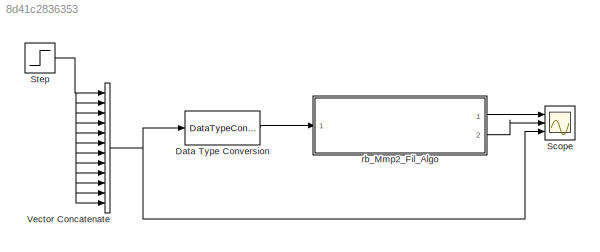
MODEL slx_8d41c2836353
KIND model
CONFIG AbsTol = auto
CONFIG EnableMultiTasking = off
CONFIG FixedStep = auto
CONFIG MaxStep = auto
CONFIG MinStep = auto
CONFIG RelTol = 1e-3
CONFIG SampleTimeConstraint = Unconstrained
CONFIG Solver = VariableStepAuto
CONFIG SolverName = VariableStepAuto
CONFIG StartTime = 0.0
CONFIG StopTime = 10.0
BLOCK [DataTypeConversion] Data Type Conversion
  OutDataTypeStr = single
  RndMeth = Floor
  SaturateOnIntegerOverflow = off
BLOCK [Scope] Scope
  NumInputPorts = 3
  Ports = [3]
  ScopeSpecificationString = Simulink.scopes.TimeScopeBlockCfg('CurrentConfiguration', extmgr.ConfigurationSet(extmgr.Configuration('Core','General UI',true),extmgr.Configuration('Core','Source UI',true),extmgr.Configuration('Sources','WiredSimulink',true),extmgr.Configuration('Visuals','Time Domain',true,'SerializedDisplays',{struct('MinYLimReal','-0.16552','MaxYLimReal','1.23184','YLabelReal','','MinYLimMag','0.00000','MaxY...<+1779ch>
BLOCK [Step] Step
  SampleTime = 0
BLOCK [Concatenate] Vector Concatenate
  NumInputs = 12
  Ports = [12, 1]
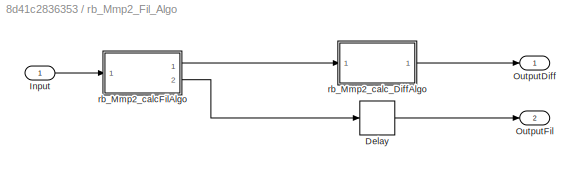
BLOCK [SubSystem] rb_Mmp2_Fil_Algo
  Ports = [1, 2]
  RequestExecContextInheritance = off
  Variant = off
BLOCK [Delay] rb_Mmp2_Fil_Algo/Delay
  DelayLength = 1
  InputPortMap = u0
  Ports = [1, 1]
BLOCK [Inport] rb_Mmp2_Fil_Algo/Input
  IconDisplay = Port number
BLOCK [Outport] rb_Mmp2_Fil_Algo/OutputDiff
  IconDisplay = Port number
BLOCK [Outport] rb_Mmp2_Fil_Algo/OutputFil
  IconDisplay = Port number
  Port = 2
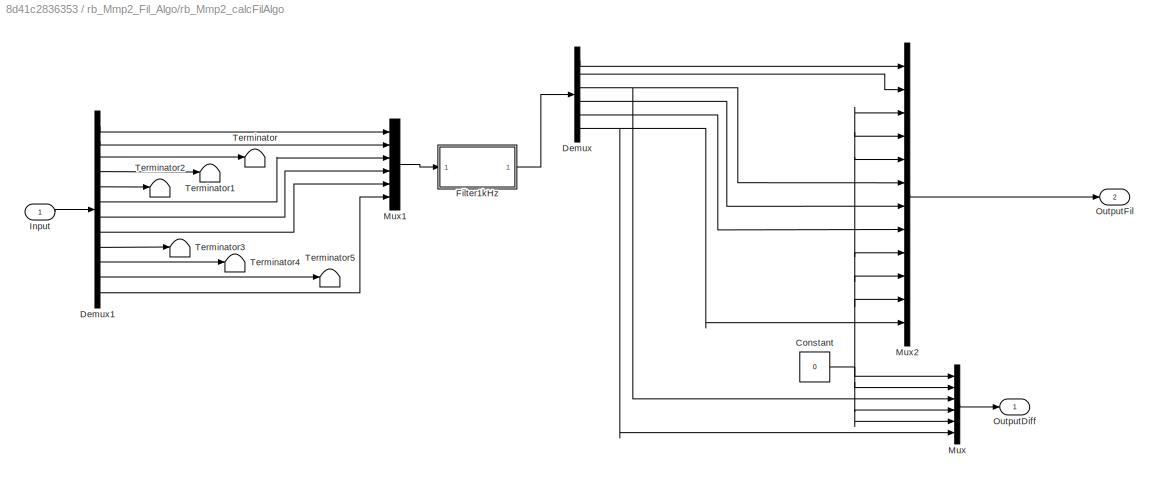
BLOCK [SubSystem] rb_Mmp2_Fil_Algo/rb_Mmp2_calcFilAlgo 
  Ports = [1, 2]
  RequestExecContextInheritance = off
  Tag = FilterWizardSubSystem
  UserDataPersistent = on
  Variant = off
BLOCK [Constant] rb_Mmp2_Fil_Algo/rb_Mmp2_calcFilAlgo /Constant
  OutDataTypeStr = single
  Value = 0
BLOCK [Demux] rb_Mmp2_Fil_Algo/rb_Mmp2_calcFilAlgo /Demux
  DisplayOption = bar
  Outputs = 6
  Ports = [1, 6]
BLOCK [Demux] rb_Mmp2_Fil_Algo/rb_Mmp2_calcFilAlgo /Demux1
  DisplayOption = bar
  Outputs = 12
  Ports = [1, 12]
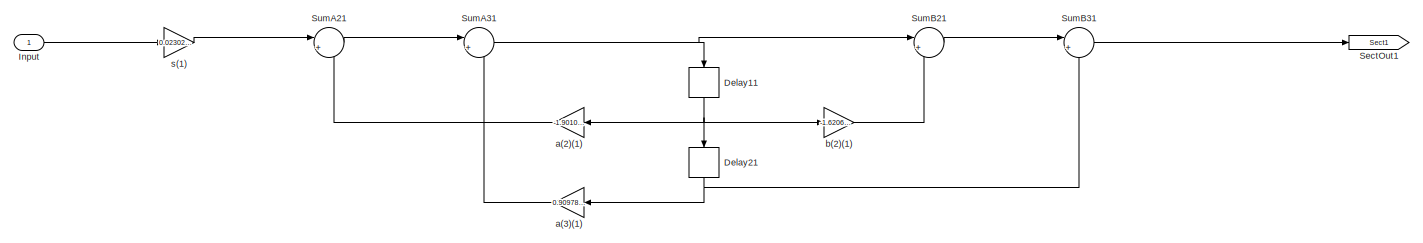
[diagram: rb_Mmp2_Fil_Algo/rb_Mmp2_calcFilAlgo /Filter1kHz - part 1/2, left side, full height]
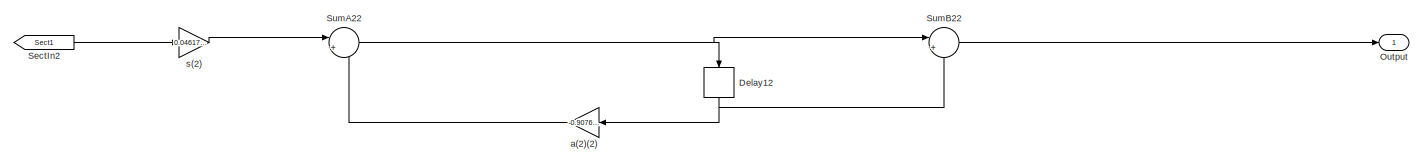
[diagram: rb_Mmp2_Fil_Algo/rb_Mmp2_calcFilAlgo /Filter1kHz - part 2/2, middle right region]
BLOCK [SubSystem] rb_Mmp2_Fil_Algo/rb_Mmp2_calcFilAlgo /Filter1kHz
  ErrorFcn = dspFilterRealizedInBasicElemsAlgLoopErrFcnCallback
  Ports = [1, 1]
  RequestExecContextInheritance = off
  Tag = FilterWizardSubSystem
  UserDataPersistent = on
  Variant = off
BLOCK [Delay] rb_Mmp2_Fil_Algo/rb_Mmp2_calcFilAlgo /Filter1kHz/Delay11
  DelayLength = 1
  InitialCondition = 0
  InputPortMap = u0
  Ports = [1, 1]
BLOCK [Delay] rb_Mmp2_Fil_Algo/rb_Mmp2_calcFilAlgo /Filter1kHz/Delay12
  DelayLength = 1
  InitialCondition = 0
  InputPortMap = u0
  Ports = [1, 1]
BLOCK [Delay] rb_Mmp2_Fil_Algo/rb_Mmp2_calcFilAlgo /Filter1kHz/Delay21
  DelayLength = 1
  InitialCondition = 0
  InputPortMap = u0
  Ports = [1, 1]
BLOCK [Inport] rb_Mmp2_Fil_Algo/rb_Mmp2_calcFilAlgo /Filter1kHz/Input
  IconDisplay = Port number
BLOCK [Outport] rb_Mmp2_Fil_Algo/rb_Mmp2_calcFilAlgo /Filter1kHz/Output
  IconDisplay = Port number
BLOCK [From] rb_Mmp2_Fil_Algo/rb_Mmp2_calcFilAlgo /Filter1kHz/SectIn2
  GotoTag = Sect1
BLOCK [Goto] rb_Mmp2_Fil_Algo/rb_Mmp2_calcFilAlgo /Filter1kHz/SectOut1
  GotoTag = Sect1
BLOCK [Sum] rb_Mmp2_Fil_Algo/rb_Mmp2_calcFilAlgo /Filter1kHz/SumA21
  IconShape = round
  InputSameDT = off
  Inputs = |+-
  Ports = [2, 1]
  RndMeth = Nearest
BLOCK [Sum] rb_Mmp2_Fil_Algo/rb_Mmp2_calcFilAlgo /Filter1kHz/SumA22
  IconShape = round
  InputSameDT = off
  Inputs = |+-
  Ports = [2, 1]
  RndMeth = Nearest
BLOCK [Sum] rb_Mmp2_Fil_Algo/rb_Mmp2_calcFilAlgo /Filter1kHz/SumA31
  IconShape = round
  InputSameDT = off
  Inputs = |+-
  Ports = [2, 1]
  RndMeth = Nearest
BLOCK [Sum] rb_Mmp2_Fil_Algo/rb_Mmp2_calcFilAlgo /Filter1kHz/SumB21
  IconShape = round
  InputSameDT = off
  Inputs = |++
  Ports = [2, 1]
  RndMeth = Nearest
BLOCK [Sum] rb_Mmp2_Fil_Algo/rb_Mmp2_calcFilAlgo /Filter1kHz/SumB22
  IconShape = round
  InputSameDT = off
  Inputs = |++
  Ports = [2, 1]
  RndMeth = Nearest
BLOCK [Sum] rb_Mmp2_Fil_Algo/rb_Mmp2_calcFilAlgo /Filter1kHz/SumB31
  IconShape = round
  InputSameDT = off
  Inputs = |++
  Ports = [2, 1]
  RndMeth = Nearest
BLOCK [Gain] rb_Mmp2_Fil_Algo/rb_Mmp2_calcFilAlgo /Filter1kHz/a(2)(1)
  Gain = -1.9010501272945237
  ParamDataTypeStr = double
  RndMeth = Nearest
BLOCK [Gain] rb_Mmp2_Fil_Algo/rb_Mmp2_calcFilAlgo /Filter1kHz/a(2)(2)
  Gain = -0.90765821754341902
  ParamDataTypeStr = double
  RndMeth = Nearest
BLOCK [Gain] rb_Mmp2_Fil_Algo/rb_Mmp2_calcFilAlgo /Filter1kHz/a(3)(1)
  Gain = 0.9097840805100903
  ParamDataTypeStr = double
  RndMeth = Nearest
BLOCK [Gain] rb_Mmp2_Fil_Algo/rb_Mmp2_calcFilAlgo /Filter1kHz/b(2)(1)
  Gain = -1.6206205101354008
  ParamDataTypeStr = double
  RndMeth = Nearest
BLOCK [Gain] rb_Mmp2_Fil_Algo/rb_Mmp2_calcFilAlgo /Filter1kHz/s(1)
  Gain = 0.023021680003533485
  ParamDataTypeStr = double
  RndMeth = Nearest
BLOCK [Gain] rb_Mmp2_Fil_Algo/rb_Mmp2_calcFilAlgo /Filter1kHz/s(2)
  Gain = 0.046170891228290531
  ParamDataTypeStr = double
  RndMeth = Nearest
BLOCK [Inport] rb_Mmp2_Fil_Algo/rb_Mmp2_calcFilAlgo /Input
  IconDisplay = Port number
BLOCK [Mux] rb_Mmp2_Fil_Algo/rb_Mmp2_calcFilAlgo /Mux
  DisplayOption = bar
  Inputs = 6
  Ports = [6, 1]
BLOCK [Mux] rb_Mmp2_Fil_Algo/rb_Mmp2_calcFilAlgo /Mux1
  DisplayOption = bar
  Inputs = 6
  Ports = [6, 1]
BLOCK [Mux] rb_Mmp2_Fil_Algo/rb_Mmp2_calcFilAlgo /Mux2
  DisplayOption = bar
  Inputs = 12
  Ports = [12, 1]
BLOCK [Outport] rb_Mmp2_Fil_Algo/rb_Mmp2_calcFilAlgo /OutputDiff
  IconDisplay = Port number
BLOCK [Outport] rb_Mmp2_Fil_Algo/rb_Mmp2_calcFilAlgo /OutputFil
  IconDisplay = Port number
  Port = 2
BLOCK [Terminator] rb_Mmp2_Fil_Algo/rb_Mmp2_calcFilAlgo /Terminator
BLOCK [Terminator] rb_Mmp2_Fil_Algo/rb_Mmp2_calcFilAlgo /Terminator1
BLOCK [Terminator] rb_Mmp2_Fil_Algo/rb_Mmp2_calcFilAlgo /Terminator2
BLOCK [Terminator] rb_Mmp2_Fil_Algo/rb_Mmp2_calcFilAlgo /Terminator3
BLOCK [Terminator] rb_Mmp2_Fil_Algo/rb_Mmp2_calcFilAlgo /Terminator4
BLOCK [Terminator] rb_Mmp2_Fil_Algo/rb_Mmp2_calcFilAlgo /Terminator5
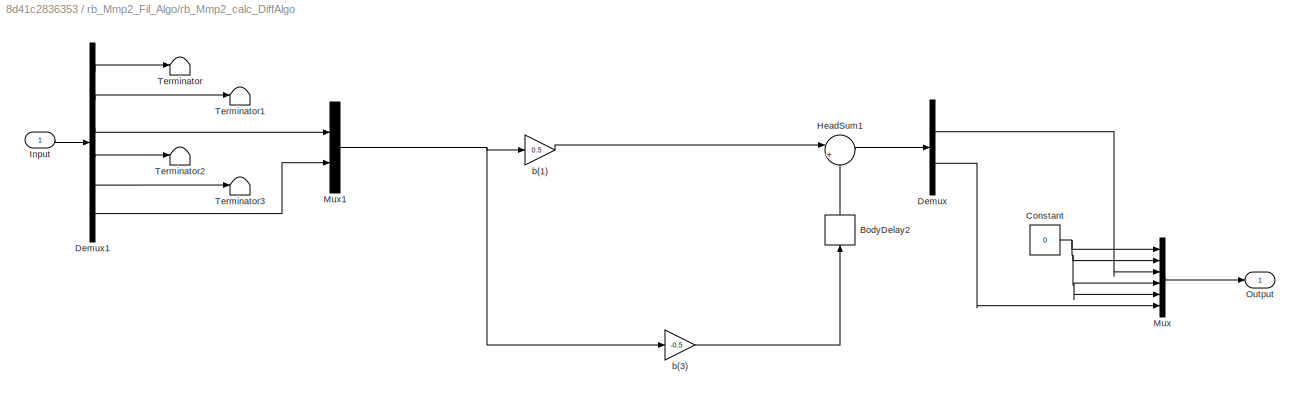
BLOCK [SubSystem] rb_Mmp2_Fil_Algo/rb_Mmp2_calc_DiffAlgo
  ErrorFcn = dspFilterRealizedInBasicElemsAlgLoopErrFcnCallback
  Ports = [1, 1]
  RequestExecContextInheritance = off
  Tag = FilterWizardSubSystem
  UserDataPersistent = on
  Variant = off
BLOCK [Delay] rb_Mmp2_Fil_Algo/rb_Mmp2_calc_DiffAlgo/BodyDelay2
  InitialCondition = 0
  InputPortMap = u0
  Ports = [1, 1]
BLOCK [Constant] rb_Mmp2_Fil_Algo/rb_Mmp2_calc_DiffAlgo/Constant
  OutDataTypeStr = single
  Value = 0
BLOCK [Demux] rb_Mmp2_Fil_Algo/rb_Mmp2_calc_DiffAlgo/Demux
  DisplayOption = bar
  Outputs = 2
  Ports = [1, 2]
BLOCK [Demux] rb_Mmp2_Fil_Algo/rb_Mmp2_calc_DiffAlgo/Demux1
  DisplayOption = bar
  Outputs = 6
  Ports = [1, 6]
BLOCK [Sum] rb_Mmp2_Fil_Algo/rb_Mmp2_calc_DiffAlgo/HeadSum1
  IconShape = round
  InputSameDT = off
  Inputs = |++
  Ports = [2, 1]
  RndMeth = Nearest
BLOCK [Inport] rb_Mmp2_Fil_Algo/rb_Mmp2_calc_DiffAlgo/Input
  IconDisplay = Port number
BLOCK [Mux] rb_Mmp2_Fil_Algo/rb_Mmp2_calc_DiffAlgo/Mux
  DisplayOption = bar
  Inputs = 6
  Ports = [6, 1]
BLOCK [Mux] rb_Mmp2_Fil_Algo/rb_Mmp2_calc_DiffAlgo/Mux1
  DisplayOption = bar
  Inputs = 2
  Ports = [2, 1]
BLOCK [Outport] rb_Mmp2_Fil_Algo/rb_Mmp2_calc_DiffAlgo/Output
  IconDisplay = Port number
BLOCK [Terminator] rb_Mmp2_Fil_Algo/rb_Mmp2_calc_DiffAlgo/Terminator
BLOCK [Terminator] rb_Mmp2_Fil_Algo/rb_Mmp2_calc_DiffAlgo/Terminator1
BLOCK [Terminator] rb_Mmp2_Fil_Algo/rb_Mmp2_calc_DiffAlgo/Terminator2
BLOCK [Terminator] rb_Mmp2_Fil_Algo/rb_Mmp2_calc_DiffAlgo/Terminator3
BLOCK [Gain] rb_Mmp2_Fil_Algo/rb_Mmp2_calc_DiffAlgo/b(1)
  Gain = 0.5
  ParamDataTypeStr = single
  RndMeth = Nearest
BLOCK [Gain] rb_Mmp2_Fil_Algo/rb_Mmp2_calc_DiffAlgo/b(3)
  Gain = -0.5
  ParamDataTypeStr = single
  RndMeth = Nearest
LINE Data Type Conversion:1 -> rb_Mmp2_Fil_Algo:1
NET Step:1 -> Vector Concatenate:1, Vector Concatenate:10, Vector Concatenate:11, Vector Concatenate:12, Vector Concatenate:2, Vector Concatenate:3, Vector Concatenate:4, Vector Concatenate:5, Vector Concatenate:6, Vector Concatenate:7, Vector Concatenate:8, Vector Concatenate:9
NET Vector Concatenate:1 -> Data Type Conversion:1, Scope:3
LINE rb_Mmp2_Fil_Algo/Delay:1 -> rb_Mmp2_Fil_Algo/OutputFil:1
LINE rb_Mmp2_Fil_Algo/Input:1 -> rb_Mmp2_Fil_Algo/rb_Mmp2_calcFilAlgo :1
NET rb_Mmp2_Fil_Algo/rb_Mmp2_calcFilAlgo /Constant:1 -> rb_Mmp2_Fil_Algo/rb_Mmp2_calcFilAlgo /Mux2:10, rb_Mmp2_Fil_Algo/rb_Mmp2_calcFilAlgo /Mux2:11, rb_Mmp2_Fil_Algo/rb_Mmp2_calcFilAlgo /Mux2:3, rb_Mmp2_Fil_Algo/rb_Mmp2_calcFilAlgo /Mux2:4, rb_Mmp2_Fil_Algo/rb_Mmp2_calcFilAlgo /Mux2:5, rb_Mmp2_Fil_Algo/rb_Mmp2_calcFilAlgo /Mux2:9, rb_Mmp2_Fil_Algo/rb_Mmp2_calcFilAlgo /Mux:1, rb_Mmp2_Fil_Algo/rb_Mmp2_calcFilAlgo /Mux:2, rb_Mmp2_Fil_Algo/rb_Mmp2_calcFilAlgo /Mux:4, rb_Mmp2_Fil_Algo/rb_Mmp2_calcFilAlgo /Mux:5
LINE rb_Mmp2_Fil_Algo/rb_Mmp2_calcFilAlgo /Demux1:1 -> rb_Mmp2_Fil_Algo/rb_Mmp2_calcFilAlgo /Mux1:1
LINE rb_Mmp2_Fil_Algo/rb_Mmp2_calcFilAlgo /Demux1:10 -> rb_Mmp2_Fil_Algo/rb_Mmp2_calcFilAlgo /Terminator4:1
LINE rb_Mmp2_Fil_Algo/rb_Mmp2_calcFilAlgo /Demux1:11 -> rb_Mmp2_Fil_Algo/rb_Mmp2_calcFilAlgo /Terminator5:1
LINE rb_Mmp2_Fil_Algo/rb_Mmp2_calcFilAlgo /Demux1:12 -> rb_Mmp2_Fil_Algo/rb_Mmp2_calcFilAlgo /Mux1:6
LINE rb_Mmp2_Fil_Algo/rb_Mmp2_calcFilAlgo /Demux1:2 -> rb_Mmp2_Fil_Algo/rb_Mmp2_calcFilAlgo /Mux1:2
LINE rb_Mmp2_Fil_Algo/rb_Mmp2_calcFilAlgo /Demux1:3 -> rb_Mmp2_Fil_Algo/rb_Mmp2_calcFilAlgo /Terminator:1
LINE rb_Mmp2_Fil_Algo/rb_Mmp2_calcFilAlgo /Demux1:4 -> rb_Mmp2_Fil_Algo/rb_Mmp2_calcFilAlgo /Terminator1:1
LINE rb_Mmp2_Fil_Algo/rb_Mmp2_calcFilAlgo /Demux1:5 -> rb_Mmp2_Fil_Algo/rb_Mmp2_calcFilAlgo /Terminator2:1
LINE rb_Mmp2_Fil_Algo/rb_Mmp2_calcFilAlgo /Demux1:6 -> rb_Mmp2_Fil_Algo/rb_Mmp2_calcFilAlgo /Mux1:3
LINE rb_Mmp2_Fil_Algo/rb_Mmp2_calcFilAlgo /Demux1:7 -> rb_Mmp2_Fil_Algo/rb_Mmp2_calcFilAlgo /Mux1:4
LINE rb_Mmp2_Fil_Algo/rb_Mmp2_calcFilAlgo /Demux1:8 -> rb_Mmp2_Fil_Algo/rb_Mmp2_calcFilAlgo /Mux1:5
LINE rb_Mmp2_Fil_Algo/rb_Mmp2_calcFilAlgo /Demux1:9 -> rb_Mmp2_Fil_Algo/rb_Mmp2_calcFilAlgo /Terminator3:1
LINE rb_Mmp2_Fil_Algo/rb_Mmp2_calcFilAlgo /Demux:1 -> rb_Mmp2_Fil_Algo/rb_Mmp2_calcFilAlgo /Mux2:1
LINE rb_Mmp2_Fil_Algo/rb_Mmp2_calcFilAlgo /Demux:2 -> rb_Mmp2_Fil_Algo/rb_Mmp2_calcFilAlgo /Mux2:2
NET rb_Mmp2_Fil_Algo/rb_Mmp2_calcFilAlgo /Demux:3 -> rb_Mmp2_Fil_Algo/rb_Mmp2_calcFilAlgo /Mux2:6, rb_Mmp2_Fil_Algo/rb_Mmp2_calcFilAlgo /Mux:3
LINE rb_Mmp2_Fil_Algo/rb_Mmp2_calcFilAlgo /Demux:4 -> rb_Mmp2_Fil_Algo/rb_Mmp2_calcFilAlgo /Mux2:7
LINE rb_Mmp2_Fil_Algo/rb_Mmp2_calcFilAlgo /Demux:5 -> rb_Mmp2_Fil_Algo/rb_Mmp2_calcFilAlgo /Mux2:8
NET rb_Mmp2_Fil_Algo/rb_Mmp2_calcFilAlgo /Demux:6 -> rb_Mmp2_Fil_Algo/rb_Mmp2_calcFilAlgo /Mux2:12, rb_Mmp2_Fil_Algo/rb_Mmp2_calcFilAlgo /Mux:6
NET rb_Mmp2_Fil_Algo/rb_Mmp2_calcFilAlgo /Filter1kHz/Delay11:1 -> rb_Mmp2_Fil_Algo/rb_Mmp2_calcFilAlgo /Filter1kHz/Delay21:1, rb_Mmp2_Fil_Algo/rb_Mmp2_calcFilAlgo /Filter1kHz/a(2)(1):1, rb_Mmp2_Fil_Algo/rb_Mmp2_calcFilAlgo /Filter1kHz/b(2)(1):1
NET rb_Mmp2_Fil_Algo/rb_Mmp2_calcFilAlgo /Filter1kHz/Delay12:1 -> rb_Mmp2_Fil_Algo/rb_Mmp2_calcFilAlgo /Filter1kHz/SumB22:2, rb_Mmp2_Fil_Algo/rb_Mmp2_calcFilAlgo /Filter1kHz/a(2)(2):1
NET rb_Mmp2_Fil_Algo/rb_Mmp2_calcFilAlgo /Filter1kHz/Delay21:1 -> rb_Mmp2_Fil_Algo/rb_Mmp2_calcFilAlgo /Filter1kHz/SumB31:2, rb_Mmp2_Fil_Algo/rb_Mmp2_calcFilAlgo /Filter1kHz/a(3)(1):1
LINE rb_Mmp2_Fil_Algo/rb_Mmp2_calcFilAlgo /Filter1kHz/Input:1 -> rb_Mmp2_Fil_Algo/rb_Mmp2_calcFilAlgo /Filter1kHz/s(1):1
LINE rb_Mmp2_Fil_Algo/rb_Mmp2_calcFilAlgo /Filter1kHz/SectIn2:1 -> rb_Mmp2_Fil_Algo/rb_Mmp2_calcFilAlgo /Filter1kHz/s(2):1
LINE rb_Mmp2_Fil_Algo/rb_Mmp2_calcFilAlgo /Filter1kHz/SumA21:1 -> rb_Mmp2_Fil_Algo/rb_Mmp2_calcFilAlgo /Filter1kHz/SumA31:1
NET rb_Mmp2_Fil_Algo/rb_Mmp2_calcFilAlgo /Filter1kHz/SumA22:1 -> rb_Mmp2_Fil_Algo/rb_Mmp2_calcFilAlgo /Filter1kHz/Delay12:1, rb_Mmp2_Fil_Algo/rb_Mmp2_calcFilAlgo /Filter1kHz/SumB22:1
NET rb_Mmp2_Fil_Algo/rb_Mmp2_calcFilAlgo /Filter1kHz/SumA31:1 -> rb_Mmp2_Fil_Algo/rb_Mmp2_calcFilAlgo /Filter1kHz/Delay11:1, rb_Mmp2_Fil_Algo/rb_Mmp2_calcFilAlgo /Filter1kHz/SumB21:1
LINE rb_Mmp2_Fil_Algo/rb_Mmp2_calcFilAlgo /Filter1kHz/SumB21:1 -> rb_Mmp2_Fil_Algo/rb_Mmp2_calcFilAlgo /Filter1kHz/SumB31:1
LINE rb_Mmp2_Fil_Algo/rb_Mmp2_calcFilAlgo /Filter1kHz/SumB22:1 -> rb_Mmp2_Fil_Algo/rb_Mmp2_calcFilAlgo /Filter1kHz/Output:1
LINE rb_Mmp2_Fil_Algo/rb_Mmp2_calcFilAlgo /Filter1kHz/SumB31:1 -> rb_Mmp2_Fil_Algo/rb_Mmp2_calcFilAlgo /Filter1kHz/SectOut1:1
LINE rb_Mmp2_Fil_Algo/rb_Mmp2_calcFilAlgo /Filter1kHz/a(2)(1):1 -> rb_Mmp2_Fil_Algo/rb_Mmp2_calcFilAlgo /Filter1kHz/SumA21:2
LINE rb_Mmp2_Fil_Algo/rb_Mmp2_calcFilAlgo /Filter1kHz/a(2)(2):1 -> rb_Mmp2_Fil_Algo/rb_Mmp2_calcFilAlgo /Filter1kHz/SumA22:2
LINE rb_Mmp2_Fil_Algo/rb_Mmp2_calcFilAlgo /Filter1kHz/a(3)(1):1 -> rb_Mmp2_Fil_Algo/rb_Mmp2_calcFilAlgo /Filter1kHz/SumA31:2
LINE rb_Mmp2_Fil_Algo/rb_Mmp2_calcFilAlgo /Filter1kHz/b(2)(1):1 -> rb_Mmp2_Fil_Algo/rb_Mmp2_calcFilAlgo /Filter1kHz/SumB21:2
LINE rb_Mmp2_Fil_Algo/rb_Mmp2_calcFilAlgo /Filter1kHz/s(1):1 -> rb_Mmp2_Fil_Algo/rb_Mmp2_calcFilAlgo /Filter1kHz/SumA21:1
LINE rb_Mmp2_Fil_Algo/rb_Mmp2_calcFilAlgo /Filter1kHz/s(2):1 -> rb_Mmp2_Fil_Algo/rb_Mmp2_calcFilAlgo /Filter1kHz/SumA22:1
LINE rb_Mmp2_Fil_Algo/rb_Mmp2_calcFilAlgo /Filter1kHz:1 -> rb_Mmp2_Fil_Algo/rb_Mmp2_calcFilAlgo /Demux:1
LINE rb_Mmp2_Fil_Algo/rb_Mmp2_calcFilAlgo /Input:1 -> rb_Mmp2_Fil_Algo/rb_Mmp2_calcFilAlgo /Demux1:1
LINE rb_Mmp2_Fil_Algo/rb_Mmp2_calcFilAlgo /Mux1:1 -> rb_Mmp2_Fil_Algo/rb_Mmp2_calcFilAlgo /Filter1kHz:1
LINE rb_Mmp2_Fil_Algo/rb_Mmp2_calcFilAlgo /Mux2:1 -> rb_Mmp2_Fil_Algo/rb_Mmp2_calcFilAlgo /OutputFil:1
LINE rb_Mmp2_Fil_Algo/rb_Mmp2_calcFilAlgo /Mux:1 -> rb_Mmp2_Fil_Algo/rb_Mmp2_calcFilAlgo /OutputDiff:1
LINE rb_Mmp2_Fil_Algo/rb_Mmp2_calcFilAlgo :1 -> rb_Mmp2_Fil_Algo/rb_Mmp2_calc_DiffAlgo:1
LINE rb_Mmp2_Fil_Algo/rb_Mmp2_calcFilAlgo :2 -> rb_Mmp2_Fil_Algo/Delay:1
LINE rb_Mmp2_Fil_Algo/rb_Mmp2_calc_DiffAlgo/BodyDelay2:1 -> rb_Mmp2_Fil_Algo/rb_Mmp2_calc_DiffAlgo/HeadSum1:2
NET rb_Mmp2_Fil_Algo/rb_Mmp2_calc_DiffAlgo/Constant:1 -> rb_Mmp2_Fil_Algo/rb_Mmp2_calc_DiffAlgo/Mux:1, rb_Mmp2_Fil_Algo/rb_Mmp2_calc_DiffAlgo/Mux:2, rb_Mmp2_Fil_Algo/rb_Mmp2_calc_DiffAlgo/Mux:4, rb_Mmp2_Fil_Algo/rb_Mmp2_calc_DiffAlgo/Mux:5
LINE rb_Mmp2_Fil_Algo/rb_Mmp2_calc_DiffAlgo/Demux1:1 -> rb_Mmp2_Fil_Algo/rb_Mmp2_calc_DiffAlgo/Terminator:1
LINE rb_Mmp2_Fil_Algo/rb_Mmp2_calc_DiffAlgo/Demux1:2 -> rb_Mmp2_Fil_Algo/rb_Mmp2_calc_DiffAlgo/Terminator1:1
LINE rb_Mmp2_Fil_Algo/rb_Mmp2_calc_DiffAlgo/Demux1:3 -> rb_Mmp2_Fil_Algo/rb_Mmp2_calc_DiffAlgo/Mux1:1
LINE rb_Mmp2_Fil_Algo/rb_Mmp2_calc_DiffAlgo/Demux1:4 -> rb_Mmp2_Fil_Algo/rb_Mmp2_calc_DiffAlgo/Terminator2:1
LINE rb_Mmp2_Fil_Algo/rb_Mmp2_calc_DiffAlgo/Demux1:5 -> rb_Mmp2_Fil_Algo/rb_Mmp2_calc_DiffAlgo/Terminator3:1
LINE rb_Mmp2_Fil_Algo/rb_Mmp2_calc_DiffAlgo/Demux1:6 -> rb_Mmp2_Fil_Algo/rb_Mmp2_calc_DiffAlgo/Mux1:2
LINE rb_Mmp2_Fil_Algo/rb_Mmp2_calc_DiffAlgo/Demux:1 -> rb_Mmp2_Fil_Algo/rb_Mmp2_calc_DiffAlgo/Mux:3
LINE rb_Mmp2_Fil_Algo/rb_Mmp2_calc_DiffAlgo/Demux:2 -> rb_Mmp2_Fil_Algo/rb_Mmp2_calc_DiffAlgo/Mux:6
LINE rb_Mmp2_Fil_Algo/rb_Mmp2_calc_DiffAlgo/HeadSum1:1 -> rb_Mmp2_Fil_Algo/rb_Mmp2_calc_DiffAlgo/Demux:1
LINE rb_Mmp2_Fil_Algo/rb_Mmp2_calc_DiffAlgo/Input:1 -> rb_Mmp2_Fil_Algo/rb_Mmp2_calc_DiffAlgo/Demux1:1
NET rb_Mmp2_Fil_Algo/rb_Mmp2_calc_DiffAlgo/Mux1:1 -> rb_Mmp2_Fil_Algo/rb_Mmp2_calc_DiffAlgo/b(1):1, rb_Mmp2_Fil_Algo/rb_Mmp2_calc_DiffAlgo/b(3):1
LINE rb_Mmp2_Fil_Algo/rb_Mmp2_calc_DiffAlgo/Mux:1 -> rb_Mmp2_Fil_Algo/rb_Mmp2_calc_DiffAlgo/Output:1
LINE rb_Mmp2_Fil_Algo/rb_Mmp2_calc_DiffAlgo/b(1):1 -> rb_Mmp2_Fil_Algo/rb_Mmp2_calc_DiffAlgo/HeadSum1:1
LINE rb_Mmp2_Fil_Algo/rb_Mmp2_calc_DiffAlgo/b(3):1 -> rb_Mmp2_Fil_Algo/rb_Mmp2_calc_DiffAlgo/BodyDelay2:1
LINE rb_Mmp2_Fil_Algo/rb_Mmp2_calc_DiffAlgo:1 -> rb_Mmp2_Fil_Algo/OutputDiff:1
LINE rb_Mmp2_Fil_Algo:1 -> Scope:1
LINE rb_Mmp2_Fil_Algo:2 -> Scope:2
note: NET lines group one-source signal fan-out (src -> all destinations, sorted); 1:1 wires keep LINE
